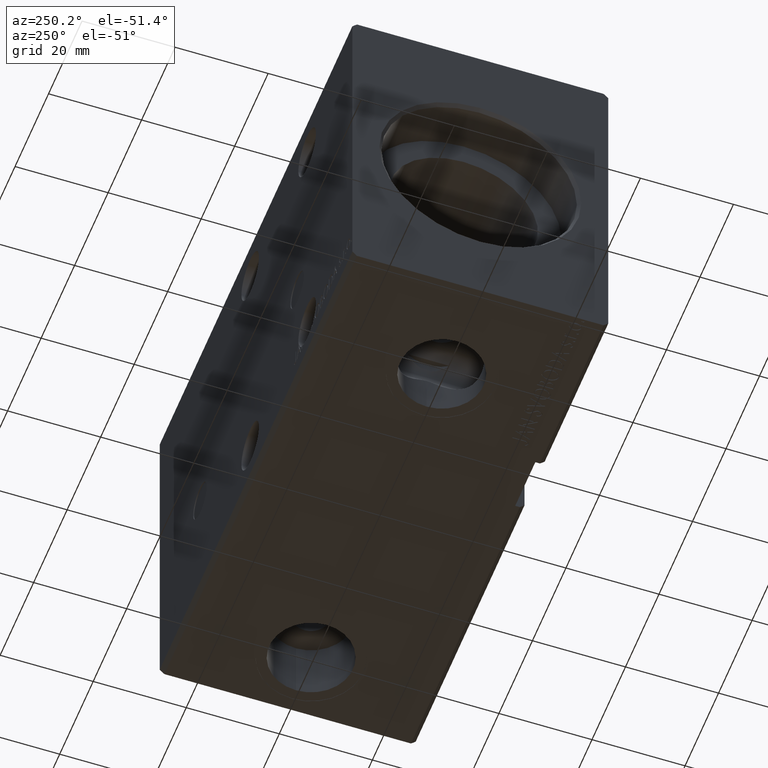
[diagram: clean part render]
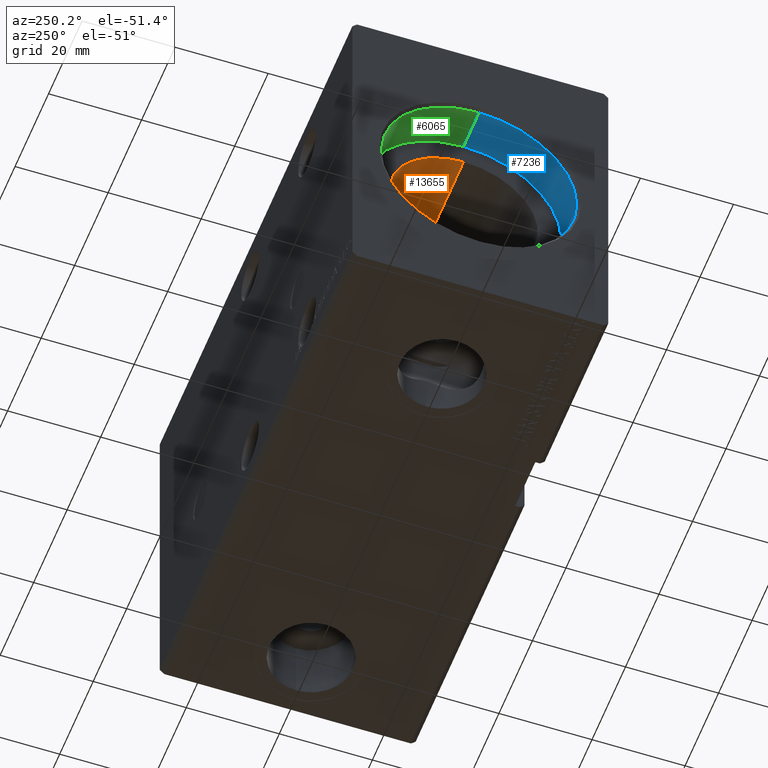
[diagram: same view with three faces highlighted in distinct colors, each labeled with its STEP entity id]
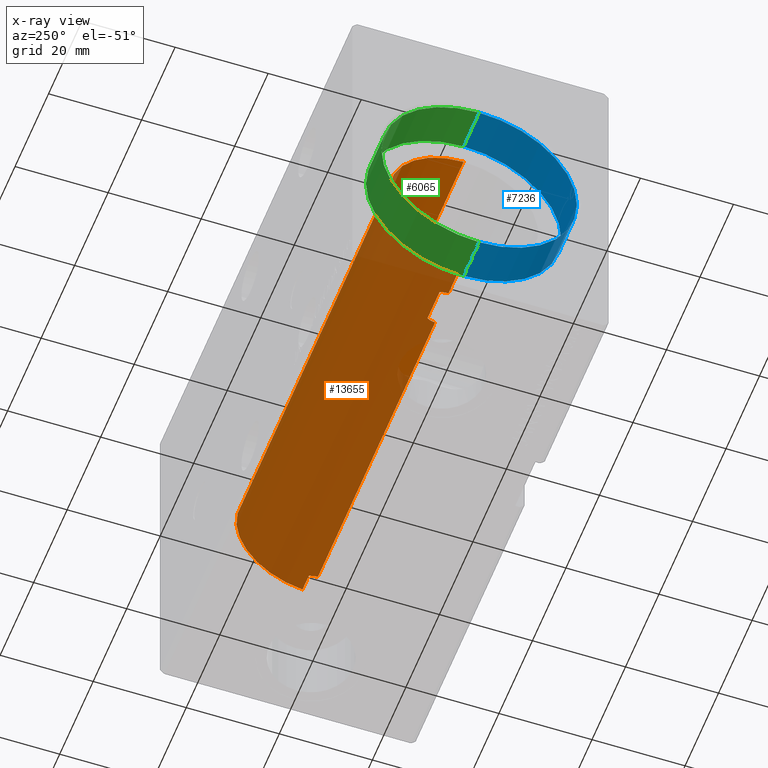
[diagram: x-ray of the same camera — body ghosted, the three highlighted faces saturated]
A machine part, auxiliary view with three faces highlighted in distinct colors.
The next image is the same camera in x-ray (body ghosted, the three faces saturated) — at least one of them is partly hidden behind the body in this view.
Their STEP definitions:

[orange] entity #13655 — the highlighted cylindrical surface (partial cylindrical patch) has radius 16 mm, axis along (-1, -0, -0).
#64 = EDGE_CURVE ( 'NONE', #23737, #971, #3328, .T. ) ;
#359 = CARTESIAN_POINT ( 'NONE',  ( 27.00000000000000000, -3.043259601029998868E-15, -16.00000000000000000 ) ) ;
#458 = B_SPLINE_CURVE_WITH_KNOTS ( 'NONE', 3,
 ( #656, #36749, #21597, #33755, #31365, #3853 ),
 .UNSPECIFIED., .F., .F.,
 ( 4, 2, 4 ),
 ( 0.001845745242563112155, 0.002767447188281243163, 0.003689149133999374604 ),
 .UNSPECIFIED. ) ;
#656 = CARTESIAN_POINT ( 'NONE',  ( 97.00000000000000000, 1.959437589923279121E-15, -16.00000000000000000 ) ) ;
#971 = VERTEX_POINT ( 'NONE', #16022 ) ;
#1003 = DIRECTION ( 'NONE',  ( 0.000000000000000000, 0.000000000000000000, 1.000000000000000000 ) ) ;
#1089 = DIRECTION ( 'NONE',  ( 0.000000000000000000, 0.000000000000000000, 1.000000000000000000 ) ) ;
#1675 = CARTESIAN_POINT ( 'NONE',  ( 101.2000000000000028, 0.000000000000000000, 0.000000000000000000 ) ) ;
#2106 = CARTESIAN_POINT ( 'NONE',  ( 9.999999999999994671, 0.000000000000000000, 16.00000000000000000 ) ) ;
#2553 = CARTESIAN_POINT ( 'NONE',  ( 101.2000000000000028, 1.786057109949259036, -15.89999999999998970 ) ) ;
#3030 = AXIS2_PLACEMENT_3D ( 'NONE', #1675, #38165, #1089 ) ;
#3134 = ORIENTED_EDGE ( 'NONE', *, *, #18350, .T. ) ;
#3328 = LINE ( 'NONE', #2553, #37297 ) ;
#3426 = EDGE_CURVE ( 'NONE', #17288, #6955, #37697, .T. ) ;
#3733 = CARTESIAN_POINT ( 'NONE',  ( 19.00000000000000000, 0.3073137169939946234, -16.00000000000000355 ) ) ;
#3853 = CARTESIAN_POINT ( 'NONE',  ( 97.42089396636539789, 1.786057109949259036, -15.89999999999998970 ) ) ;
#4160 = EDGE_LOOP ( 'NONE', ( #38160, #19617, #26401, #33628, #19415, #6933, #23147, #17877, #35203, #3134 ) ) ;
#4685 = VECTOR ( 'NONE', #10986, 1000.000000000000000 ) ;
#5274 = DIRECTION ( 'NONE',  ( -1.000000000000000000, -0.000000000000000000, -0.000000000000000000 ) ) ;
#5522 = EDGE_CURVE ( 'NONE', #6854, #971, #458, .T. ) ;
#5617 = CIRCLE ( 'NONE', #38078, 16.00000000000000000 ) ;
#5946 = CARTESIAN_POINT ( 'NONE',  ( 26.82196254941095148, 1.219576022118251224, -15.95627408098855149 ) ) ;
#6136 = CARTESIAN_POINT ( 'NONE',  ( 27.00000000000000000, -3.043259601029998868E-15, -16.00000000000000000 ) ) ;
#6175 = CARTESIAN_POINT ( 'NONE',  ( 19.00000000000000000, -3.533112898183174258E-15, -16.00000000000000000 ) ) ;
#6672 = VERTEX_POINT ( 'NONE', #31619 ) ;
#6837 = LINE ( 'NONE', #16208, #29365 ) ;
#6854 = VERTEX_POINT ( 'NONE', #29221 ) ;
#6933 = ORIENTED_EDGE ( 'NONE', *, *, #12212, .T. ) ;
#6955 = VERTEX_POINT ( 'NONE', #37162 ) ;
#7239 = DIRECTION ( 'NONE',  ( -1.000000000000000000, -0.000000000000000000, -0.000000000000000000 ) ) ;
#8945 = CARTESIAN_POINT ( 'NONE',  ( 101.2000000000000028, 1.959434878635765131E-15, -16.00000000000000000 ) ) ;
#9664 = CYLINDRICAL_SURFACE ( 'NONE', #31777, 16.00000000000000000 ) ;
#9861 = DIRECTION ( 'NONE',  ( 0.000000000000000000, 0.000000000000000000, 1.000000000000000000 ) ) ;
#10111 = CARTESIAN_POINT ( 'NONE',  ( 19.17775111251207321, 1.219193417833758231, -15.95634149554535774 ) ) ;
#10858 = CARTESIAN_POINT ( 'NONE',  ( 9.999999999999994671, 1.959434878635765131E-15, -16.00000000000000000 ) ) ;
#10986 = DIRECTION ( 'NONE',  ( -1.000000000000000000, -0.000000000000000000, -0.000000000000000000 ) ) ;
#12212 = EDGE_CURVE ( 'NONE', #25927, #22708, #5617, .T. ) ;
#12264 = FACE_OUTER_BOUND ( 'NONE', #4160, .T. ) ;
#12626 = CARTESIAN_POINT ( 'NONE',  ( 101.2000000000000028, 1.786057109949259036, -15.89999999999998970 ) ) ;
#13655 = ADVANCED_FACE ( 'NONE', ( #12264 ), #9664, .F. ) ;
#14772 = CARTESIAN_POINT ( 'NONE',  ( 101.2000000000000028, 0.000000000000000000, 16.00000000000000000 ) ) ;
#15435 = VECTOR ( 'NONE', #5274, 1000.000000000000000 ) ;
#15886 = CARTESIAN_POINT ( 'NONE',  ( 19.42089396636538723, 1.786057109949259036, -15.89999999999998970 ) ) ;
#15897 = CARTESIAN_POINT ( 'NONE',  ( 26.96356619788477005, 0.6204082509210394614, -15.99078302721733102 ) ) ;
#16022 = CARTESIAN_POINT ( 'NONE',  ( 97.42089396636539789, 1.786057109949259036, -15.89999999999998970 ) ) ;
#16208 = CARTESIAN_POINT ( 'NONE',  ( 101.2000000000000028, 1.959434878635765131E-15, -16.00000000000000000 ) ) ;
#16752 = CARTESIAN_POINT ( 'NONE',  ( 9.999999999999994671, 0.000000000000000000, 0.000000000000000000 ) ) ;
#16966 = LINE ( 'NONE', #38298, #4685 ) ;
#17288 = VERTEX_POINT ( 'NONE', #6175 ) ;
#17877 = ORIENTED_EDGE ( 'NONE', *, *, #3426, .T. ) ;
#18350 = EDGE_CURVE ( 'NONE', #6672, #25488, #27215, .T. ) ;
#19415 = ORIENTED_EDGE ( 'NONE', *, *, #30203, .T. ) ;
#19617 = ORIENTED_EDGE ( 'NONE', *, *, #5522, .T. ) ;
#20234 = CIRCLE ( 'NONE', #3030, 16.00000000000000000 ) ;
#20436 = CARTESIAN_POINT ( 'NONE',  ( 101.2000000000000028, 1.786057109949259036, -15.89999999999998970 ) ) ;
#21089 = DIRECTION ( 'NONE',  ( -1.000000000000000000, -0.000000000000000000, -0.000000000000000000 ) ) ;
#21292 = CARTESIAN_POINT ( 'NONE',  ( 26.57910603363460922, 1.786057109949259036, -15.89999999999998970 ) ) ;
#21597 = CARTESIAN_POINT ( 'NONE',  ( 97.03558494715527161, 0.6159808737045046056, -15.99099227927342248 ) ) ;
#21788 = VERTEX_POINT ( 'NONE', #14772 ) ;
#21881 = CARTESIAN_POINT ( 'NONE',  ( 26.71770615202115806, 1.508314300261686114, -15.93119902641380925 ) ) ;
#22708 = VERTEX_POINT ( 'NONE', #10858 ) ;
#22811 = EDGE_CURVE ( 'NONE', #6672, #6955, #36165, .T. ) ;
#23147 = ORIENTED_EDGE ( 'NONE', *, *, #31539, .F. ) ;
#23710 = DIRECTION ( 'NONE',  ( -1.000000000000000000, -0.000000000000000000, -0.000000000000000000 ) ) ;
#23737 = VERTEX_POINT ( 'NONE', #12626 ) ;
#24426 = DIRECTION ( 'NONE',  ( -1.000000000000000000, -0.000000000000000000, -0.000000000000000000 ) ) ;
#24470 = CARTESIAN_POINT ( 'NONE',  ( 19.28245879915401417, 1.508644848340496392, -15.93116189573794195 ) ) ;
#24771 = EDGE_CURVE ( 'NONE', #6854, #25488, #6837, .T. ) ;
#25072 = CARTESIAN_POINT ( 'NONE',  ( 26.99999999999999645, 0.3077040434552349435, -16.00000000000000000 ) ) ;
#25488 = VERTEX_POINT ( 'NONE', #359 ) ;
#25927 = VERTEX_POINT ( 'NONE', #2106 ) ;
#26401 = ORIENTED_EDGE ( 'NONE', *, *, #64, .F. ) ;
#27215 = B_SPLINE_CURVE_WITH_KNOTS ( 'NONE', 3,
 ( #21292, #21881, #5946, #15897, #25072, #6136 ),
 .UNSPECIFIED., .F., .F.,
 ( 4, 2, 4 ),
 ( 0.000000000000000000, 0.0009228726212815571619, 0.001845745242563114324 ),
 .UNSPECIFIED. ) ;
#28524 = DIRECTION ( 'NONE',  ( -1.000000000000000000, 0.000000000000000000, 0.000000000000000000 ) ) ;
#29221 = CARTESIAN_POINT ( 'NONE',  ( 97.00000000000000000, 1.959437589923279121E-15, -16.00000000000000000 ) ) ;
#29365 = VECTOR ( 'NONE', #7239, 1000.000000000000000 ) ;
#30203 = EDGE_CURVE ( 'NONE', #21788, #25927, #16966, .T. ) ;
#31365 = CARTESIAN_POINT ( 'NONE',  ( 97.28245879915404259, 1.508644848340499278, -15.93116189573794550 ) ) ;
#31539 = EDGE_CURVE ( 'NONE', #17288, #22708, #36254, .T. ) ;
#31619 = CARTESIAN_POINT ( 'NONE',  ( 26.57910603363460922, 1.786057109949259036, -15.89999999999998970 ) ) ;
#31777 = AXIS2_PLACEMENT_3D ( 'NONE', #37176, #24426, #9861 ) ;
#31871 = VECTOR ( 'NONE', #23710, 1000.000000000000000 ) ;
#33628 = ORIENTED_EDGE ( 'NONE', *, *, #38187, .F. ) ;
#33755 = CARTESIAN_POINT ( 'NONE',  ( 97.17775111251206965, 1.219193417833761783, -15.95634149554536130 ) ) ;
#34034 = CARTESIAN_POINT ( 'NONE',  ( 19.00000000000000000, -3.533112898183174258E-15, -16.00000000000000000 ) ) ;
#34239 = CARTESIAN_POINT ( 'NONE',  ( 19.03558494715525029, 0.6159808737045000537, -15.99099227927342248 ) ) ;
#35203 = ORIENTED_EDGE ( 'NONE', *, *, #22811, .F. ) ;
#36165 = LINE ( 'NONE', #20436, #15435 ) ;
#36254 = LINE ( 'NONE', #8945, #31871 ) ;
#36749 = CARTESIAN_POINT ( 'NONE',  ( 96.99999999999998579, 0.3073137169939997304, -16.00000000000000000 ) ) ;
#37162 = CARTESIAN_POINT ( 'NONE',  ( 19.42089396636538723, 1.786057109949259036, -15.89999999999998970 ) ) ;
#37176 = CARTESIAN_POINT ( 'NONE',  ( 101.2000000000000028, 0.000000000000000000, 0.000000000000000000 ) ) ;
#37297 = VECTOR ( 'NONE', #21089, 1000.000000000000000 ) ;
#37697 = B_SPLINE_CURVE_WITH_KNOTS ( 'NONE', 3,
 ( #34034, #3733, #34239, #10111, #24470, #15886 ),
 .UNSPECIFIED., .F., .F.,
 ( 4, 2, 4 ),
 ( 0.001845745242563107602, 0.002767447188281240561, 0.003689149133999374171 ),
 .UNSPECIFIED. ) ;
#38078 = AXIS2_PLACEMENT_3D ( 'NONE', #16752, #28524, #1003 ) ;
#38160 = ORIENTED_EDGE ( 'NONE', *, *, #24771, .F. ) ;
#38165 = DIRECTION ( 'NONE',  ( -1.000000000000000000, 0.000000000000000000, 0.000000000000000000 ) ) ;
#38187 = EDGE_CURVE ( 'NONE', #21788, #23737, #20234, .T. ) ;
#38298 = CARTESIAN_POINT ( 'NONE',  ( 101.2000000000000028, 0.000000000000000000, 16.00000000000000000 ) ) ;

[blue] entity #7236 — the highlighted cylindrical surface (partial cylindrical patch) has radius 21 mm, axis along (-1, -0, -0).
#2245 = CYLINDRICAL_SURFACE ( 'NONE', #29823, 21.00000000000000000 ) ;
#2432 = CARTESIAN_POINT ( 'NONE',  ( 10.00000000000000000, 0.000000000000000000, 0.000000000000000000 ) ) ;
#3309 = EDGE_CURVE ( 'NONE', #26776, #28405, #20897, .T. ) ;
#4247 = CARTESIAN_POINT ( 'NONE',  ( 0.7000000000000443645, 0.000000000000000000, 21.00000000000000000 ) ) ;
#6440 = AXIS2_PLACEMENT_3D ( 'NONE', #2432, #11999, #29748 ) ;
#7236 = ADVANCED_FACE ( 'NONE', ( #23386 ), #2245, .F. ) ;
#7365 = DIRECTION ( 'NONE',  ( -1.000000000000000000, 0.000000000000000000, 0.000000000000000000 ) ) ;
#9575 = CIRCLE ( 'NONE', #29962, 21.00000000000000000 ) ;
#10275 = CIRCLE ( 'NONE', #6440, 21.00000000000000000 ) ;
#11005 = VERTEX_POINT ( 'NONE', #4247 ) ;
#11926 = CARTESIAN_POINT ( 'NONE',  ( 10.00000000000000000, 2.571758278209441661E-15, -21.00000000000000000 ) ) ;
#11999 = DIRECTION ( 'NONE',  ( -1.000000000000000000, 0.000000000000000000, 0.000000000000000000 ) ) ;
#12008 = DIRECTION ( 'NONE',  ( 0.000000000000000000, 0.000000000000000000, 1.000000000000000000 ) ) ;
#13034 = VERTEX_POINT ( 'NONE', #37702 ) ;
#13540 = DIRECTION ( 'NONE',  ( -1.000000000000000000, -0.000000000000000000, -0.000000000000000000 ) ) ;
#13605 = ORIENTED_EDGE ( 'NONE', *, *, #36448, .F. ) ;
#14800 = CARTESIAN_POINT ( 'NONE',  ( 0.7000000000000443645, 2.571758278209441661E-15, -21.00000000000000000 ) ) ;
#15710 = VECTOR ( 'NONE', #13540, 1000.000000000000000 ) ;
#20401 = CARTESIAN_POINT ( 'NONE',  ( 10.00000000000000000, 0.000000000000000000, 0.000000000000000000 ) ) ;
#20897 = LINE ( 'NONE', #11926, #32918 ) ;
#21810 = EDGE_LOOP ( 'NONE', ( #29403, #33604, #23593, #13605 ) ) ;
#23386 = FACE_OUTER_BOUND ( 'NONE', #21810, .T. ) ;
#23593 = ORIENTED_EDGE ( 'NONE', *, *, #31402, .T. ) ;
#23884 = EDGE_CURVE ( 'NONE', #26776, #13034, #10275, .T. ) ;
#25704 = CARTESIAN_POINT ( 'NONE',  ( 0.7000000000000443645, 0.000000000000000000, 0.000000000000000000 ) ) ;
#26776 = VERTEX_POINT ( 'NONE', #28196 ) ;
#27156 = DIRECTION ( 'NONE',  ( -1.000000000000000000, -0.000000000000000000, -0.000000000000000000 ) ) ;
#28196 = CARTESIAN_POINT ( 'NONE',  ( 10.00000000000000000, 2.571758278209441661E-15, -21.00000000000000000 ) ) ;
#28405 = VERTEX_POINT ( 'NONE', #14800 ) ;
#28705 = LINE ( 'NONE', #29085, #15710 ) ;
#29085 = CARTESIAN_POINT ( 'NONE',  ( 10.00000000000000000, 0.000000000000000000, 21.00000000000000000 ) ) ;
#29403 = ORIENTED_EDGE ( 'NONE', *, *, #23884, .F. ) ;
#29748 = DIRECTION ( 'NONE',  ( 0.000000000000000000, 0.000000000000000000, 1.000000000000000000 ) ) ;
#29823 = AXIS2_PLACEMENT_3D ( 'NONE', #20401, #27156, #12008 ) ;
#29962 = AXIS2_PLACEMENT_3D ( 'NONE', #25704, #7365, #38061 ) ;
#30259 = DIRECTION ( 'NONE',  ( -1.000000000000000000, -0.000000000000000000, -0.000000000000000000 ) ) ;
#31402 = EDGE_CURVE ( 'NONE', #28405, #11005, #9575, .T. ) ;
#32918 = VECTOR ( 'NONE', #30259, 1000.000000000000000 ) ;
#33604 = ORIENTED_EDGE ( 'NONE', *, *, #3309, .T. ) ;
#36448 = EDGE_CURVE ( 'NONE', #13034, #11005, #28705, .T. ) ;
#37702 = CARTESIAN_POINT ( 'NONE',  ( 10.00000000000000000, 0.000000000000000000, 21.00000000000000000 ) ) ;
#38061 = DIRECTION ( 'NONE',  ( 0.000000000000000000, 0.000000000000000000, -1.000000000000000000 ) ) ;

[green] entity #6065 — the highlighted cylindrical surface (partial cylindrical patch) has radius 21 mm, axis along (-1, -0, -0).
#2782 = CARTESIAN_POINT ( 'NONE',  ( 0.7000000000000443645, 0.000000000000000000, 0.000000000000000000 ) ) ;
#3150 = ORIENTED_EDGE ( 'NONE', *, *, #29195, .F. ) ;
#3309 = EDGE_CURVE ( 'NONE', #26776, #28405, #20897, .T. ) ;
#3980 = AXIS2_PLACEMENT_3D ( 'NONE', #2782, #11952, #24113 ) ;
#4247 = CARTESIAN_POINT ( 'NONE',  ( 0.7000000000000443645, 0.000000000000000000, 21.00000000000000000 ) ) ;
#4499 = DIRECTION ( 'NONE',  ( 0.000000000000000000, 0.000000000000000000, 1.000000000000000000 ) ) ;
#6065 = ADVANCED_FACE ( 'NONE', ( #7475 ), #31809, .F. ) ;
#7475 = FACE_OUTER_BOUND ( 'NONE', #8893, .T. ) ;
#7535 = ORIENTED_EDGE ( 'NONE', *, *, #3309, .F. ) ;
#7598 = DIRECTION ( 'NONE',  ( 0.000000000000000000, 0.000000000000000000, 1.000000000000000000 ) ) ;
#8754 = AXIS2_PLACEMENT_3D ( 'NONE', #19651, #26221, #4499 ) ;
#8893 = EDGE_LOOP ( 'NONE', ( #7535, #3150, #33472, #24976 ) ) ;
#11000 = CIRCLE ( 'NONE', #3980, 21.00000000000000000 ) ;
#11005 = VERTEX_POINT ( 'NONE', #4247 ) ;
#11926 = CARTESIAN_POINT ( 'NONE',  ( 10.00000000000000000, 2.571758278209441661E-15, -21.00000000000000000 ) ) ;
#11952 = DIRECTION ( 'NONE',  ( -1.000000000000000000, 0.000000000000000000, 0.000000000000000000 ) ) ;
#13034 = VERTEX_POINT ( 'NONE', #37702 ) ;
#13540 = DIRECTION ( 'NONE',  ( -1.000000000000000000, -0.000000000000000000, -0.000000000000000000 ) ) ;
#14185 = AXIS2_PLACEMENT_3D ( 'NONE', #25351, #25547, #7598 ) ;
#14800 = CARTESIAN_POINT ( 'NONE',  ( 0.7000000000000443645, 2.571758278209441661E-15, -21.00000000000000000 ) ) ;
#15710 = VECTOR ( 'NONE', #13540, 1000.000000000000000 ) ;
#19651 = CARTESIAN_POINT ( 'NONE',  ( 10.00000000000000000, 0.000000000000000000, 0.000000000000000000 ) ) ;
#20897 = LINE ( 'NONE', #11926, #32918 ) ;
#24113 = DIRECTION ( 'NONE',  ( 0.000000000000000000, 0.000000000000000000, -1.000000000000000000 ) ) ;
#24976 = ORIENTED_EDGE ( 'NONE', *, *, #27485, .T. ) ;
#25351 = CARTESIAN_POINT ( 'NONE',  ( 10.00000000000000000, 0.000000000000000000, 0.000000000000000000 ) ) ;
#25547 = DIRECTION ( 'NONE',  ( -1.000000000000000000, 0.000000000000000000, 0.000000000000000000 ) ) ;
#26221 = DIRECTION ( 'NONE',  ( -1.000000000000000000, -0.000000000000000000, -0.000000000000000000 ) ) ;
#26315 = CIRCLE ( 'NONE', #14185, 21.00000000000000000 ) ;
#26776 = VERTEX_POINT ( 'NONE', #28196 ) ;
#27485 = EDGE_CURVE ( 'NONE', #11005, #28405, #11000, .T. ) ;
#28196 = CARTESIAN_POINT ( 'NONE',  ( 10.00000000000000000, 2.571758278209441661E-15, -21.00000000000000000 ) ) ;
#28405 = VERTEX_POINT ( 'NONE', #14800 ) ;
#28705 = LINE ( 'NONE', #29085, #15710 ) ;
#29085 = CARTESIAN_POINT ( 'NONE',  ( 10.00000000000000000, 0.000000000000000000, 21.00000000000000000 ) ) ;
#29195 = EDGE_CURVE ( 'NONE', #13034, #26776, #26315, .T. ) ;
#30259 = DIRECTION ( 'NONE',  ( -1.000000000000000000, -0.000000000000000000, -0.000000000000000000 ) ) ;
#31809 = CYLINDRICAL_SURFACE ( 'NONE', #8754, 21.00000000000000000 ) ;
#32918 = VECTOR ( 'NONE', #30259, 1000.000000000000000 ) ;
#33472 = ORIENTED_EDGE ( 'NONE', *, *, #36448, .T. ) ;
#36448 = EDGE_CURVE ( 'NONE', #13034, #11005, #28705, .T. ) ;
#37702 = CARTESIAN_POINT ( 'NONE',  ( 10.00000000000000000, 0.000000000000000000, 21.00000000000000000 ) ) ;